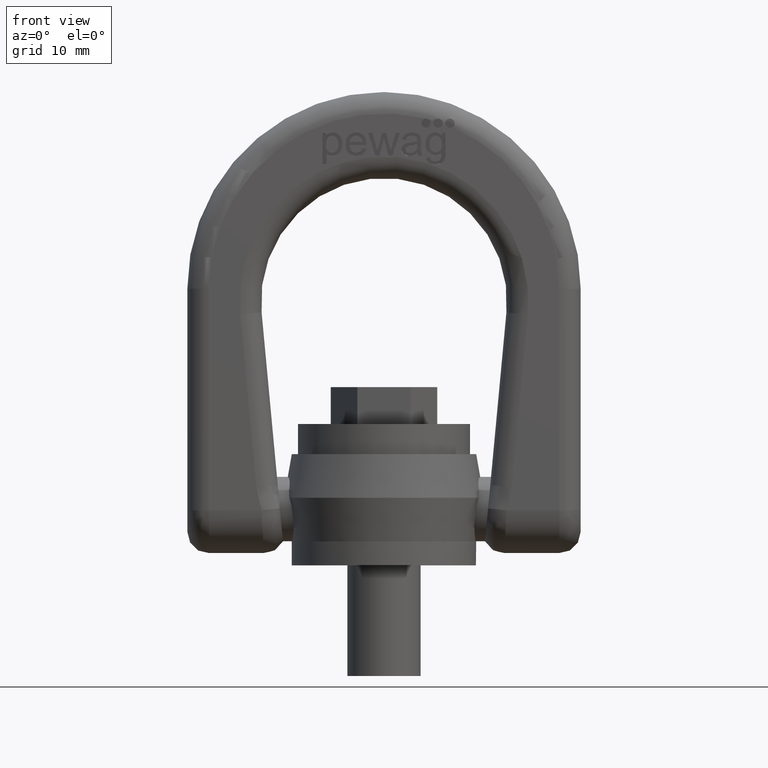
[diagram: clean part render]
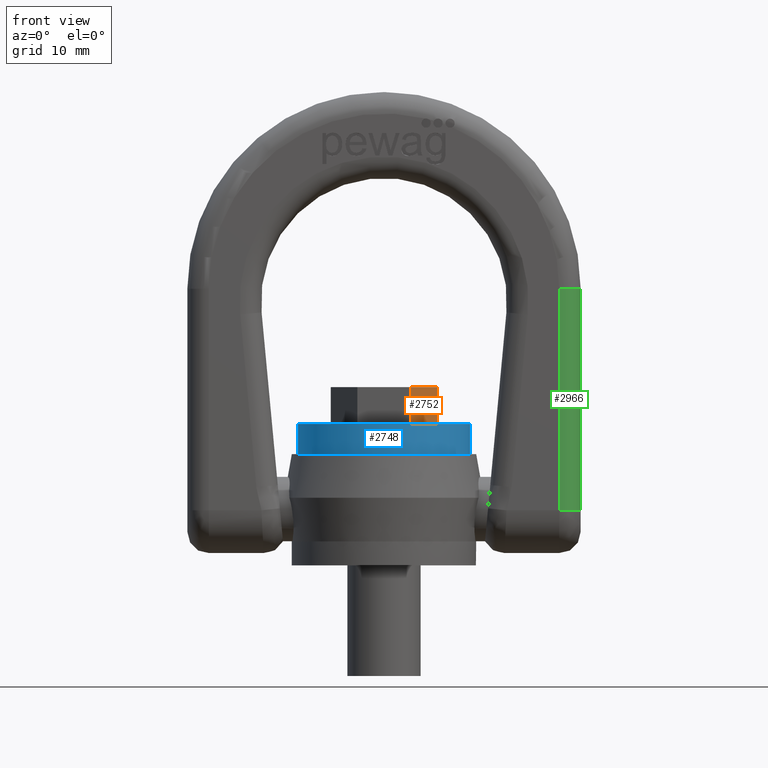
[diagram: same view with three faces highlighted in distinct colors, each labeled with its STEP entity id]
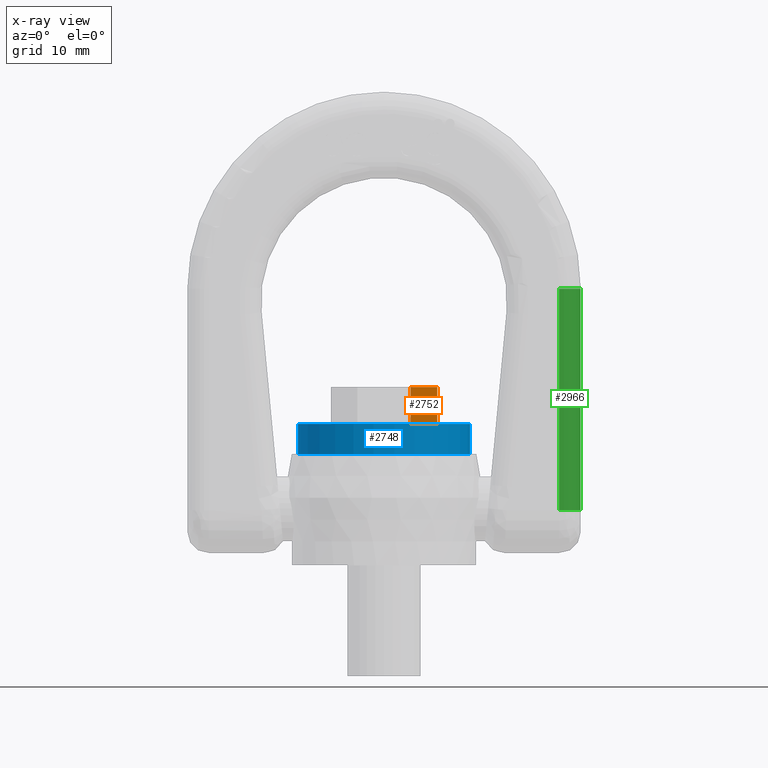
[diagram: x-ray of the same camera — body ghosted, the three highlighted faces saturated]
A machine part, front view with three faces highlighted in distinct colors.
The next image is the same camera in x-ray (body ghosted, the three faces saturated) — at least one of them is partly hidden behind the body in this view.
Their STEP definitions:

[orange] entity #2752 — the highlighted planar face has unit normal (-0.866, 0.5, 0).
#1761=LINE('',#6648,#2043);
#1766=LINE('',#6658,#2048);
#1768=LINE('',#6662,#2050);
#1769=LINE('',#6664,#2051);
#2043=VECTOR('',#5862,1.);
#2048=VECTOR('',#5871,1.);
#2050=VECTOR('',#5875,1.);
#2051=VECTOR('',#5876,1.);
#2416=FACE_OUTER_BOUND('',#3082,.T.);
#2633=PLANE('',#5635);
#2752=ADVANCED_FACE('',(#2416),#2633,.F.);
#3082=EDGE_LOOP('',(#3367,#3368,#3369,#3370));
#3367=ORIENTED_EDGE('',*,*,#4963,.T.);
#3368=ORIENTED_EDGE('',*,*,#4970,.F.);
#3369=ORIENTED_EDGE('',*,*,#4971,.F.);
#3370=ORIENTED_EDGE('',*,*,#4968,.T.);
#4561=VERTEX_POINT('',#6647);
#4562=VERTEX_POINT('',#6649);
#4565=VERTEX_POINT('',#6659);
#4566=VERTEX_POINT('',#6663);
#4963=EDGE_CURVE('',#4562,#4561,#1761,.T.);
#4968=EDGE_CURVE('',#4565,#4562,#1766,.T.);
#4970=EDGE_CURVE('',#4566,#4561,#1768,.T.);
#4971=EDGE_CURVE('',#4565,#4566,#1769,.T.);
#5635=AXIS2_PLACEMENT_3D('',#6665,#5877,#5878);
#5862=DIRECTION('',(0.5,0.866025403784438,0.));
#5871=DIRECTION('',(0.,0.,-1.));
#5875=DIRECTION('',(0.,0.,-1.));
#5876=DIRECTION('',(0.5,0.866025403784438,0.));
#5877=DIRECTION('',(-0.866025403784439,0.5,0.));
#5878=DIRECTION('',(-0.5,-0.866025403784439,0.));
#6647=CARTESIAN_POINT('',(8.66025403784439,-8.67361737988404E-16,23.));
#6648=CARTESIAN_POINT('',(4.33012701892219,-7.5,23.));
#6649=CARTESIAN_POINT('',(4.33012701892219,-7.5,23.));
#6658=CARTESIAN_POINT('',(4.33012701892219,-7.5,29.));
#6659=CARTESIAN_POINT('',(4.33012701892219,-7.5,29.));
#6662=CARTESIAN_POINT('',(8.66025403784439,-8.67361737988404E-16,29.));
#6663=CARTESIAN_POINT('',(8.66025403784439,-8.67361737988404E-16,29.));
#6664=CARTESIAN_POINT('',(4.33012701892219,-7.5,29.));
#6665=CARTESIAN_POINT('',(4.33012701892219,-7.5,29.));

[blue] entity #2748 — the highlighted cylindrical surface (bore or boss wall) has radius 14 mm, axis along (0, 0, -1).
#2748=ADVANCED_FACE('',(#3015,#3016),#2983,.T.);
#2983=CYLINDRICAL_SURFACE('',#5631,14.);
#3015=FACE_BOUND('',#3076,.T.);
#3016=FACE_BOUND('',#3077,.T.);
#3076=EDGE_LOOP('',(#3350));
#3077=EDGE_LOOP('',(#3351));
#3350=ORIENTED_EDGE('',*,*,#4958,.T.);
#3351=ORIENTED_EDGE('',*,*,#4957,.F.);
#4555=VERTEX_POINT('',#6634);
#4556=VERTEX_POINT('',#6637);
#4957=EDGE_CURVE('',#4555,#4555,#5563,.T.);
#4958=EDGE_CURVE('',#4556,#4556,#5564,.T.);
#5563=CIRCLE('',#5628,14.);
#5564=CIRCLE('',#5630,14.);
#5628=AXIS2_PLACEMENT_3D('',#6633,#5850,#5851);
#5630=AXIS2_PLACEMENT_3D('',#6636,#5854,#5855);
#5631=AXIS2_PLACEMENT_3D('',#6638,#5856,#5857);
#5850=DIRECTION('',(0.,0.,-1.));
#5851=DIRECTION('',(-1.,0.,0.));
#5854=DIRECTION('',(0.,0.,-1.));
#5855=DIRECTION('',(-1.,0.,0.));
#5856=DIRECTION('',(0.,0.,-1.));
#5857=DIRECTION('',(-1.,0.,0.));
#6633=CARTESIAN_POINT('',(0.,0.,18.1));
#6634=CARTESIAN_POINT('',(-14.,0.,18.1));
#6636=CARTESIAN_POINT('',(0.,0.,23.));
#6637=CARTESIAN_POINT('',(-14.,0.,23.));
#6638=CARTESIAN_POINT('',(0.,0.,0.));

[green] entity #2966 — the highlighted cylindrical surface (edge-blend (fillet) strip) has radius 3.5 mm, axis along (-0, 0, 1).
#1813=LINE('',#6953,#2095);
#1844=LINE('',#7106,#2126);
#2095=VECTOR('',#5954,1.);
#2126=VECTOR('',#6021,1.);
#2612=FACE_OUTER_BOUND('',#3322,.T.);
#2966=ADVANCED_FACE('',(#2612),#2997,.T.);
#2997=CYLINDRICAL_SURFACE('',#5803,3.5);
#3322=EDGE_LOOP('',(#4489,#4490,#4491,#4492));
#4489=ORIENTED_EDGE('',*,*,#5541,.T.);
#4490=ORIENTED_EDGE('',*,*,#5046,.F.);
#4491=ORIENTED_EDGE('',*,*,#5543,.F.);
#4492=ORIENTED_EDGE('',*,*,#5100,.F.);
#4582=VERTEX_POINT('',#6716);
#4631=VERTEX_POINT('',#6954);
#4679=VERTEX_POINT('',#7100);
#4682=VERTEX_POINT('',#7105);
#5046=EDGE_CURVE('',#4582,#4631,#1813,.T.);
#5100=EDGE_CURVE('',#4682,#4679,#1844,.T.);
#5541=EDGE_CURVE('',#4682,#4631,#5599,.T.);
#5543=EDGE_CURVE('',#4679,#4582,#5601,.T.);
#5599=CIRCLE('',#5798,3.5);
#5601=CIRCLE('',#5802,3.5);
#5798=AXIS2_PLACEMENT_3D('',#9531,#6562,#6563);
#5802=AXIS2_PLACEMENT_3D('',#9535,#6570,#6571);
#5803=AXIS2_PLACEMENT_3D('',#9536,#6572,#6573);
#5954=DIRECTION('',(-4.83546613512699E-16,0.,1.));
#6021=DIRECTION('',(4.83546613512699E-16,0.,-1.));
#6562=DIRECTION('',(0.,0.,-1.));
#6563=DIRECTION('',(-1.,0.,0.));
#6570=DIRECTION('',(4.95635278850516E-16,-4.91308659282458E-31,-1.));
#6571=DIRECTION('',(-1.,0.,-4.95635278850516E-16));
#6572=DIRECTION('',(-4.83546613512699E-16,0.,1.));
#6573=DIRECTION('',(1.,0.,0.));
#6716=CARTESIAN_POINT('',(28.5,-7.,8.94999999999997));
#6953=CARTESIAN_POINT('',(28.5,-7.,43.));
#6954=CARTESIAN_POINT('',(28.5,-7.,45.));
#7100=CARTESIAN_POINT('',(32.,-3.5,8.94999999999997));
#7105=CARTESIAN_POINT('',(32.,-3.5,45.));
#7106=CARTESIAN_POINT('',(32.,-3.5,1.95));
#9531=CARTESIAN_POINT('',(28.5,-3.5,45.));
#9535=CARTESIAN_POINT('',(28.5,-3.5,8.94999999999997));
#9536=CARTESIAN_POINT('',(28.5,-3.5,43.));